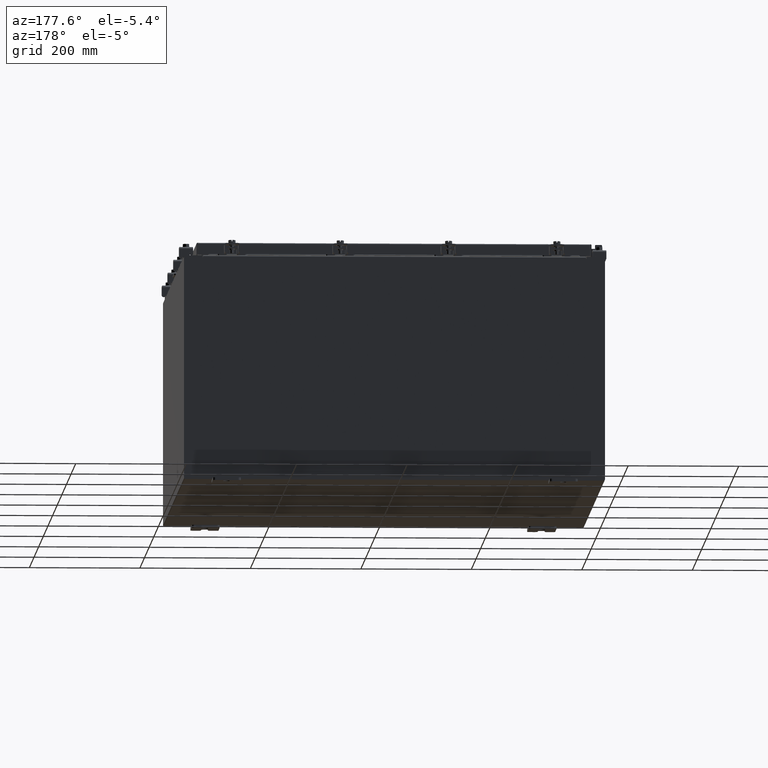
[diagram: clean part render]
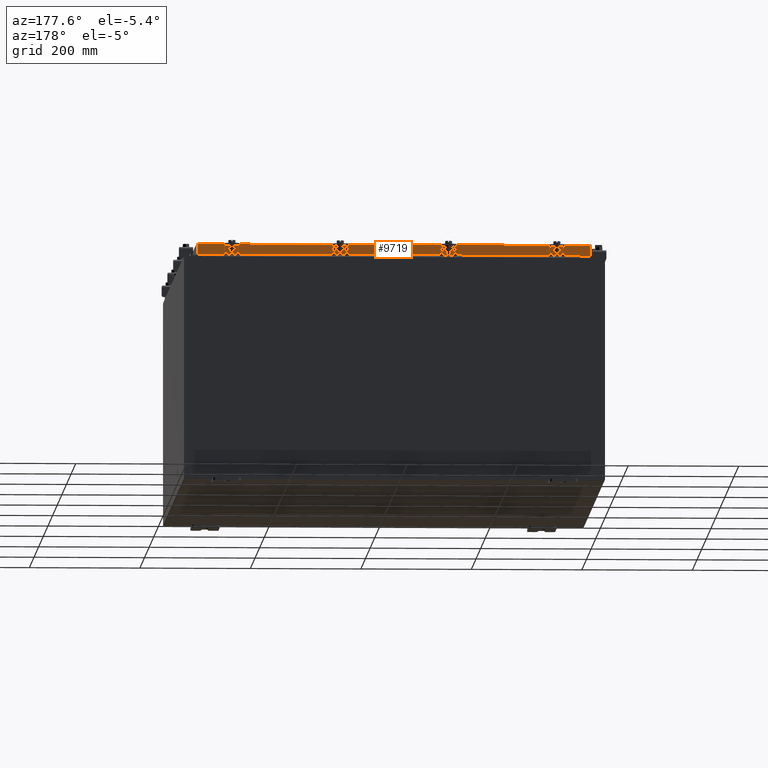
[diagram: same view with one face highlighted and labeled with its STEP entity id]
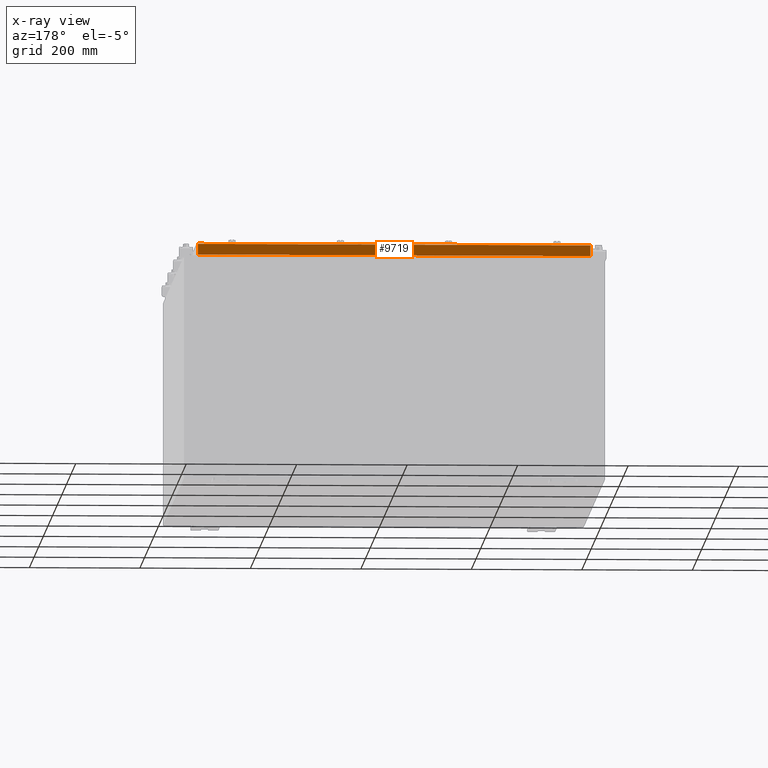
[diagram: x-ray of the same camera — body ghosted, the highlighted face saturated]
A machine part, auxiliary view. The second image highlights one B-rep face of the part: STEP entity #9719.
The next image is the same camera in x-ray: the body ghosted, the highlighted face saturated — about 0% of this face is hidden behind the body in this view.
In plain terms, the highlighted planar face has unit normal (0, -1, -0).
Its self-contained STEP definition (entity closure, byte-faithful):
#969 = EDGE_CURVE ( 'NONE', #1780, #12452, #24447, .T. ) ;
#1297 = VECTOR ( 'NONE', #21312, 39.37007874015748100 ) ;
#1780 = VERTEX_POINT ( 'NONE', #13448 ) ;
#2469 = CARTESIAN_POINT ( 'NONE',  ( -13.98915786437626700, 17.09399999999999800, -0.08769999999999897300 ) ) ;
#2581 = VECTOR ( 'NONE', #20780, 39.37007874015748100 ) ;
#3149 = FACE_OUTER_BOUND ( 'NONE', #5992, .T. ) ;
#3808 = CARTESIAN_POINT ( 'NONE',  ( -14.07799999999999800, 17.09399999999999800, -0.8500000000000032000 ) ) ;
#4386 = AXIS2_PLACEMENT_3D ( 'NONE', #17970, #10472, #23706 ) ;
#4426 = CARTESIAN_POINT ( 'NONE',  ( -13.23915786437626400, 17.09399999999999800, -0.8500000000000040900 ) ) ;
#5418 = ORIENTED_EDGE ( 'NONE', *, *, #10917, .T. ) ;
#5923 = VECTOR ( 'NONE', #16975, 39.37007874015748100 ) ;
#5992 = EDGE_LOOP ( 'NONE', ( #15037, #5418, #11368, #18382, #7756, #8530 ) ) ;
#7092 = LINE ( 'NONE', #4426, #17115 ) ;
#7756 = ORIENTED_EDGE ( 'NONE', *, *, #16887, .F. ) ;
#8097 = CARTESIAN_POINT ( 'NONE',  ( 13.98915786437626700, 17.09399999999999800, 4.844676449176206800E-014 ) ) ;
#8202 = CARTESIAN_POINT ( 'NONE',  ( -13.23915786437626400, 17.09399999999999800, -0.8500000000000040900 ) ) ;
#8530 = ORIENTED_EDGE ( 'NONE', *, *, #14985, .F. ) ;
#8618 = VERTEX_POINT ( 'NONE', #16758 ) ;
#8941 = VECTOR ( 'NONE', #10088, 39.37007874015748100 ) ;
#9271 = VERTEX_POINT ( 'NONE', #11139 ) ;
#9484 = CARTESIAN_POINT ( 'NONE',  ( -14.07799999999999800, 17.09399999999999800, -0.08770000000000007000 ) ) ;
#9719 = ADVANCED_FACE ( 'NONE', ( #3149 ), #12268, .F. ) ;
#10088 = DIRECTION ( 'NONE',  ( -0.0000000000000000000, 2.818880942772347100E-015, -1.000000000000000000 ) ) ;
#10472 = DIRECTION ( 'NONE',  ( 3.555540745226020900E-031, -1.000000000000000000, -2.818880942772347100E-015 ) ) ;
#10917 = EDGE_CURVE ( 'NONE', #9271, #12452, #11344, .T. ) ;
#11139 = CARTESIAN_POINT ( 'NONE',  ( 13.98915786437626500, 17.09399999999999800, -0.08769999999999787700 ) ) ;
#11344 = LINE ( 'NONE', #8097, #1297 ) ;
#11368 = ORIENTED_EDGE ( 'NONE', *, *, #969, .F. ) ;
#12268 = PLANE ( 'NONE',  #4386 ) ;
#12452 = VERTEX_POINT ( 'NONE', #20833 ) ;
#13365 = LINE ( 'NONE', #23239, #8941 ) ;
#13448 = CARTESIAN_POINT ( 'NONE',  ( 13.23915786437625100, 17.09399999999999800, -0.8500000000000040900 ) ) ;
#14370 = VECTOR ( 'NONE', #16398, 39.37007874015748100 ) ;
#14985 = EDGE_CURVE ( 'NONE', #17117, #8618, #13365, .T. ) ;
#15037 = ORIENTED_EDGE ( 'NONE', *, *, #24156, .F. ) ;
#15326 = LINE ( 'NONE', #3808, #5923 ) ;
#15664 = DIRECTION ( 'NONE',  ( 1.000000000000000000, -0.0000000000000000000, -0.0000000000000000000 ) ) ;
#16398 = DIRECTION ( 'NONE',  ( 1.000000000000000000, -4.379057701015054300E-047, 1.261330583805776300E-016 ) ) ;
#16758 = CARTESIAN_POINT ( 'NONE',  ( -13.98915786437626900, 17.09399999999999800, -0.8500000000000032000 ) ) ;
#16787 = EDGE_CURVE ( 'NONE', #19706, #1780, #7092, .T. ) ;
#16887 = EDGE_CURVE ( 'NONE', #8618, #19706, #15326, .T. ) ;
#16975 = DIRECTION ( 'NONE',  ( 1.000000000000000000, -4.379057701015054300E-047, 1.261330583805776300E-016 ) ) ;
#17115 = VECTOR ( 'NONE', #15664, 39.37007874015748100 ) ;
#17117 = VERTEX_POINT ( 'NONE', #2469 ) ;
#17970 = CARTESIAN_POINT ( 'NONE',  ( -6.077841349889359500E-030, 17.09399999999999800, 4.844676449176206800E-014 ) ) ;
#18329 = CARTESIAN_POINT ( 'NONE',  ( -14.07799999999999800, 17.09399999999999800, -0.8500000000000032000 ) ) ;
#18382 = ORIENTED_EDGE ( 'NONE', *, *, #16787, .F. ) ;
#19706 = VERTEX_POINT ( 'NONE', #8202 ) ;
#20780 = DIRECTION ( 'NONE',  ( -1.000000000000000000, -1.367515671240777000E-031, -7.762034361881699600E-017 ) ) ;
#20833 = CARTESIAN_POINT ( 'NONE',  ( 13.98915786437626500, 17.09399999999999800, -0.8499999999999996400 ) ) ;
#21312 = DIRECTION ( 'NONE',  ( 0.0000000000000000000, 2.818880942772347100E-015, -1.000000000000000000 ) ) ;
#23239 = CARTESIAN_POINT ( 'NONE',  ( -13.98915786437626900, 17.09399999999999800, -0.07469999999999978000 ) ) ;
#23283 = LINE ( 'NONE', #9484, #2581 ) ;
#23706 = DIRECTION ( 'NONE',  ( 0.0000000000000000000, 2.818880942772347100E-015, -1.000000000000000000 ) ) ;
#24156 = EDGE_CURVE ( 'NONE', #9271, #17117, #23283, .T. ) ;
#24447 = LINE ( 'NONE', #18329, #14370 ) ;